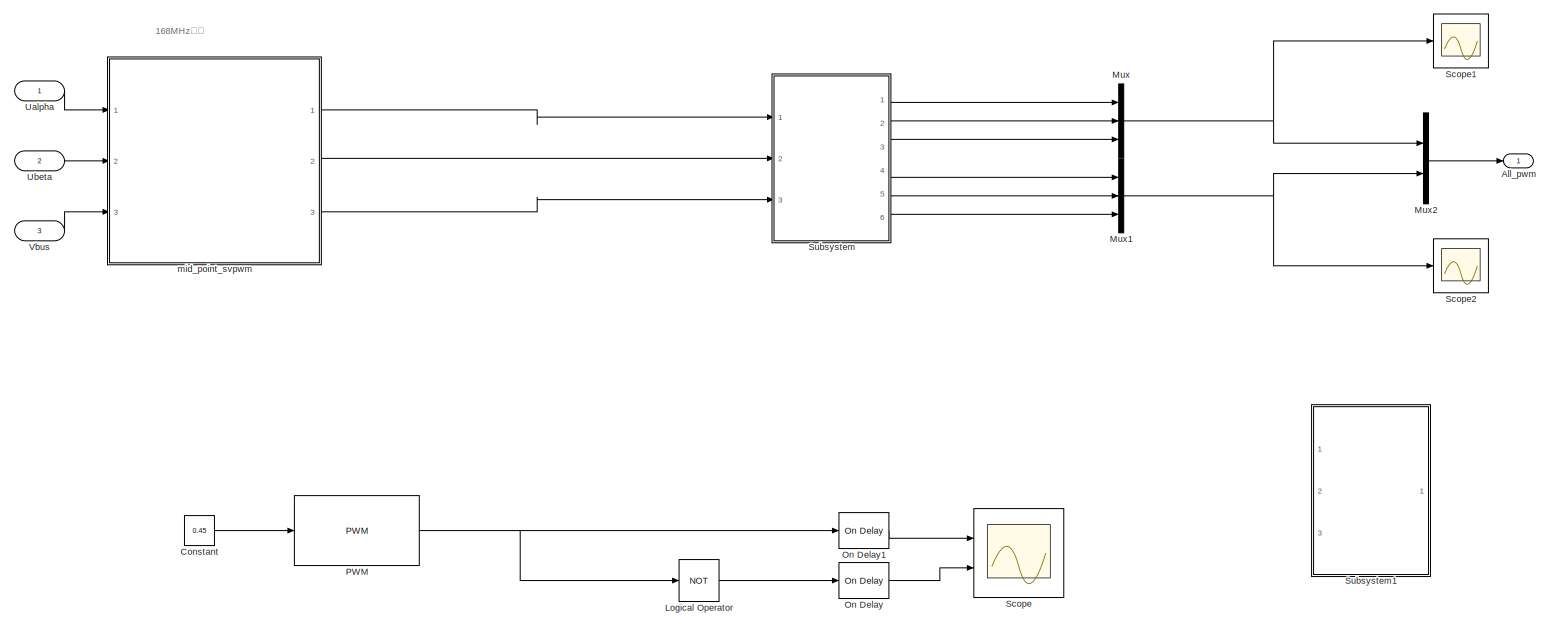
[diagram: root canvas - part 1/1, most of the canvas]
MODEL slx_13319b52a693
KIND model
CONFIG AbsTol = auto
CONFIG EnableMultiTasking = off
CONFIG FixedStep = auto
CONFIG MaxStep = auto
CONFIG MinStep = auto
CONFIG RelTol = 1e-3
CONFIG SampleTimeConstraint = Unconstrained
CONFIG SolverName = VariableStepAuto
CONFIG StartTime = 0.0
CONFIG StopTime = 0.01
BLOCK [Outport] All_pwm
BLOCK [Constant] Constant
  Commented = on
  Value = 0.45
BLOCK [Logic] Logical Operator
  AllPortsSameDT = off
  Commented = on
  Operator = NOT
  OutDataTypeStr = boolean
  Ports = [1, 1]
BLOCK [Mux] Mux
  DisplayOption = bar
  Inputs = 3
  Ports = [3, 1]
BLOCK [Mux] Mux1
  DisplayOption = bar
  Inputs = 3
  Ports = [3, 1]
BLOCK [Mux] Mux2
  DisplayOption = bar
  Inputs = 2
  Ports = [2, 1]
BLOCK [Reference] On Delay  REF=spsOnDelayLib/On Delay
  Commented = on
  Ports = [1, 1]
  SourceBlock = spsOnDelayLib/On Delay
  SourceProductBaseCode = PS
  SourceType = On/Off Delay
BLOCK [Reference] On Delay1  REF=spsOnDelayLib/On Delay
  Commented = on
  Ports = [1, 1]
  SourceBlock = spsOnDelayLib/On Delay
  SourceProductBaseCode = PS
  SourceType = On/Off Delay
BLOCK [Reference] PWM  REF=simulink/Discontinuities/PWM
  Commented = on
  DisableCoverage = on
  Ports = [1, 1]
  SourceBlock = simulink/Discontinuities/PWM
  SourceProductBaseCode = SL
  SourceType = PWM
BLOCK [Scope] Scope
  Commented = on
  Floating = off
  NumInputPorts = 2
  Ports = [2]
  ScopeSpecificationString = Simulink.scopes.TimeScopeBlockCfg('CurrentConfiguration', extmgr.ConfigurationSet(extmgr.Configuration('Core','General UI',true),extmgr.Configuration('Core','Source UI',true),extmgr.Configuration('Sources','WiredSimulink',true),extmgr.Configuration('Visuals','Time Domain',true,'SerializedDisplays',{struct('MinYLimReal','-0.1','MaxYLimReal','1.1','YLabelReal','','MinYLimMag','0.00000','MaxYLimMag',...<+1684ch>
BLOCK [Scope] Scope1
  Floating = off
  NumInputPorts = 1
  Ports = [1]
  ScopeSpecificationString = Simulink.scopes.TimeScopeBlockCfg('CurrentConfiguration', extmgr.ConfigurationSet(extmgr.Configuration('Core','General UI',true),extmgr.Configuration('Core','Source UI',true),extmgr.Configuration('Sources','WiredSimulink',true,'DataLoggingVariableName','ScopeData1'),extmgr.Configuration('Visuals','Time Domain',true,'SerializedDisplays',{struct('MinYLimReal','-0.1','MaxYLimReal','1.1','YLabelReal',...<+1863ch>
BLOCK [Scope] Scope2
  Floating = off
  NumInputPorts = 1
  Ports = [1]
  ScopeSpecificationString = Simulink.scopes.TimeScopeBlockCfg('CurrentConfiguration', extmgr.ConfigurationSet(extmgr.Configuration('Core','General UI',true),extmgr.Configuration('Core','Source UI',true),extmgr.Configuration('Sources','WiredSimulink',true,'DataLoggingVariableName','ScopeData1'),extmgr.Configuration('Visuals','Time Domain',true,'SerializedDisplays',{struct('MinYLimReal','-0.1','MaxYLimReal','1.1','YLabelReal',...<+1857ch>
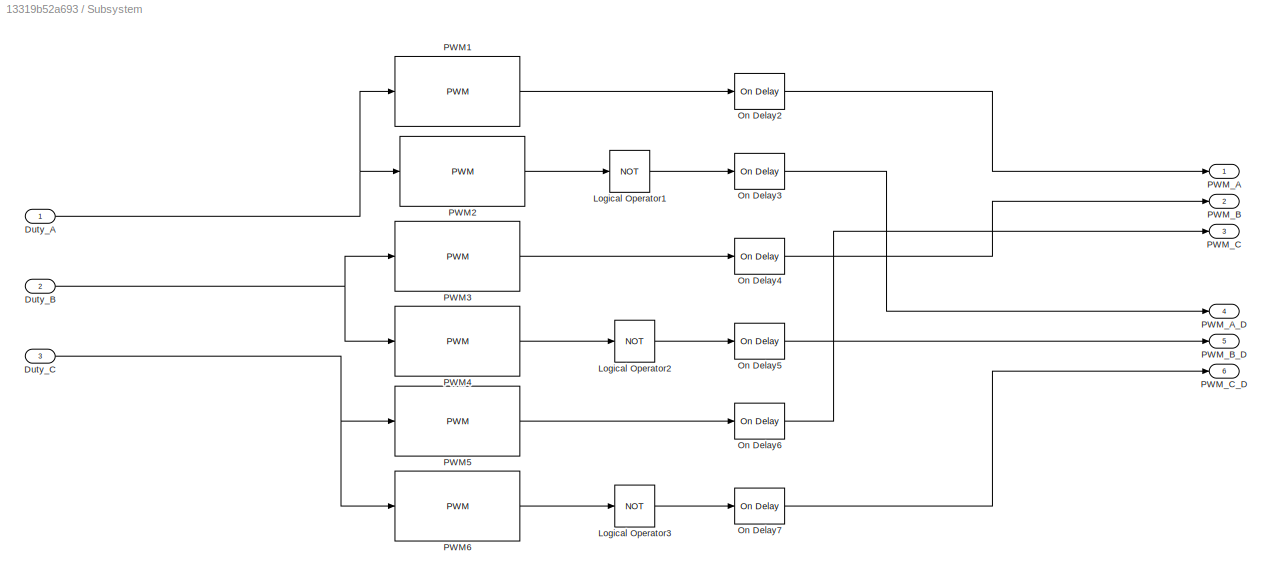
BLOCK [SubSystem] Subsystem
  Ports = [3, 6]
  RequestExecContextInheritance = off
BLOCK [Inport] Subsystem/Duty_A
BLOCK [Inport] Subsystem/Duty_B
  Port = 2
BLOCK [Inport] Subsystem/Duty_C
  Port = 3
BLOCK [Logic] Subsystem/Logical Operator1
  AllPortsSameDT = off
  Operator = NOT
  OutDataTypeStr = boolean
  Ports = [1, 1]
BLOCK [Logic] Subsystem/Logical Operator2
  AllPortsSameDT = off
  Operator = NOT
  OutDataTypeStr = boolean
  Ports = [1, 1]
BLOCK [Logic] Subsystem/Logical Operator3
  AllPortsSameDT = off
  Operator = NOT
  OutDataTypeStr = boolean
  Ports = [1, 1]
BLOCK [Reference] Subsystem/On Delay2  REF=spsOnDelayLib/On Delay
  Ports = [1, 1]
  SourceBlock = spsOnDelayLib/On Delay
  SourceProductBaseCode = PS
  SourceType = On/Off Delay
BLOCK [Reference] Subsystem/On Delay3  REF=spsOnDelayLib/On Delay
  Ports = [1, 1]
  SourceBlock = spsOnDelayLib/On Delay
  SourceProductBaseCode = PS
  SourceType = On/Off Delay
BLOCK [Reference] Subsystem/On Delay4  REF=spsOnDelayLib/On Delay
  Ports = [1, 1]
  SourceBlock = spsOnDelayLib/On Delay
  SourceProductBaseCode = PS
  SourceType = On/Off Delay
BLOCK [Reference] Subsystem/On Delay5  REF=spsOnDelayLib/On Delay
  Ports = [1, 1]
  SourceBlock = spsOnDelayLib/On Delay
  SourceProductBaseCode = PS
  SourceType = On/Off Delay
BLOCK [Reference] Subsystem/On Delay6  REF=spsOnDelayLib/On Delay
  Ports = [1, 1]
  SourceBlock = spsOnDelayLib/On Delay
  SourceProductBaseCode = PS
  SourceType = On/Off Delay
BLOCK [Reference] Subsystem/On Delay7  REF=spsOnDelayLib/On Delay
  Ports = [1, 1]
  SourceBlock = spsOnDelayLib/On Delay
  SourceProductBaseCode = PS
  SourceType = On/Off Delay
BLOCK [Reference] Subsystem/PWM1  REF=simulink/Discontinuities/PWM
  DisableCoverage = on
  Ports = [1, 1]
  SourceBlock = simulink/Discontinuities/PWM
  SourceProductBaseCode = SL
  SourceType = PWM
BLOCK [Reference] Subsystem/PWM2  REF=simulink/Discontinuities/PWM
  DisableCoverage = on
  Ports = [1, 1]
  SourceBlock = simulink/Discontinuities/PWM
  SourceProductBaseCode = SL
  SourceType = PWM
BLOCK [Reference] Subsystem/PWM3  REF=simulink/Discontinuities/PWM
  DisableCoverage = on
  Ports = [1, 1]
  SourceBlock = simulink/Discontinuities/PWM
  SourceProductBaseCode = SL
  SourceType = PWM
BLOCK [Reference] Subsystem/PWM4  REF=simulink/Discontinuities/PWM
  DisableCoverage = on
  Ports = [1, 1]
  SourceBlock = simulink/Discontinuities/PWM
  SourceProductBaseCode = SL
  SourceType = PWM
BLOCK [Reference] Subsystem/PWM5  REF=simulink/Discontinuities/PWM
  DisableCoverage = on
  Ports = [1, 1]
  SourceBlock = simulink/Discontinuities/PWM
  SourceProductBaseCode = SL
  SourceType = PWM
BLOCK [Reference] Subsystem/PWM6  REF=simulink/Discontinuities/PWM
  DisableCoverage = on
  Ports = [1, 1]
  SourceBlock = simulink/Discontinuities/PWM
  SourceProductBaseCode = SL
  SourceType = PWM
BLOCK [Outport] Subsystem/PWM_A
BLOCK [Outport] Subsystem/PWM_A_D
  Port = 4
BLOCK [Outport] Subsystem/PWM_B
  Port = 2
BLOCK [Outport] Subsystem/PWM_B_D
  Port = 5
BLOCK [Outport] Subsystem/PWM_C
  Port = 3
BLOCK [Outport] Subsystem/PWM_C_D
  Port = 6
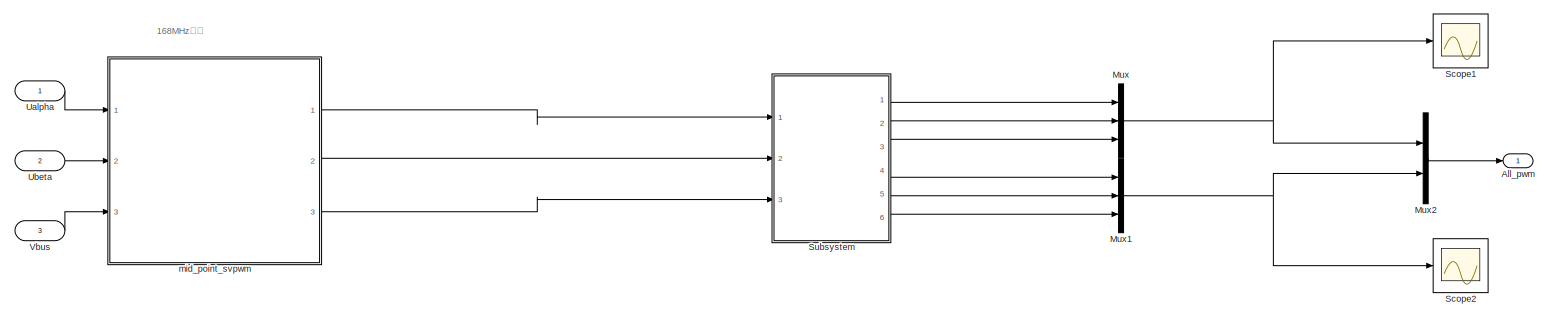
[diagram: Subsystem1 - part 1/1, most of the canvas]
BLOCK [SubSystem] Subsystem1
  Commented = on
  Ports = [3, 1]
  RequestExecContextInheritance = off
BLOCK [Outport] Subsystem1/All_pwm
BLOCK [Mux] Subsystem1/Mux
  DisplayOption = bar
  Inputs = 3
  Ports = [3, 1]
BLOCK [Mux] Subsystem1/Mux1
  DisplayOption = bar
  Inputs = 3
  Ports = [3, 1]
BLOCK [Mux] Subsystem1/Mux2
  DisplayOption = bar
  Inputs = 2
  Ports = [2, 1]
BLOCK [Scope] Subsystem1/Scope1
  Floating = off
  NumInputPorts = 1
  Ports = [1]
  ScopeSpecificationString = Simulink.scopes.TimeScopeBlockCfg('CurrentConfiguration', extmgr.ConfigurationSet(extmgr.Configuration('Core','General UI',true),extmgr.Configuration('Core','Source UI',true),extmgr.Configuration('Sources','WiredSimulink',true,'DataLoggingVariableName','ScopeData2'),extmgr.Configuration('Visuals','Time Domain',true,'SerializedDisplays',{struct('MinYLimReal','-0.1','MaxYLimReal','1.1','YLabelReal',...<+1863ch>
BLOCK [Scope] Subsystem1/Scope2
  Floating = off
  NumInputPorts = 1
  Ports = [1]
  ScopeSpecificationString = Simulink.scopes.TimeScopeBlockCfg('CurrentConfiguration', extmgr.ConfigurationSet(extmgr.Configuration('Core','General UI',true),extmgr.Configuration('Core','Source UI',true),extmgr.Configuration('Sources','WiredSimulink',true,'DataLoggingVariableName','ScopeData3'),extmgr.Configuration('Visuals','Time Domain',true,'SerializedDisplays',{struct('MinYLimReal','-0.1','MaxYLimReal','1.1','YLabelReal',...<+1857ch>
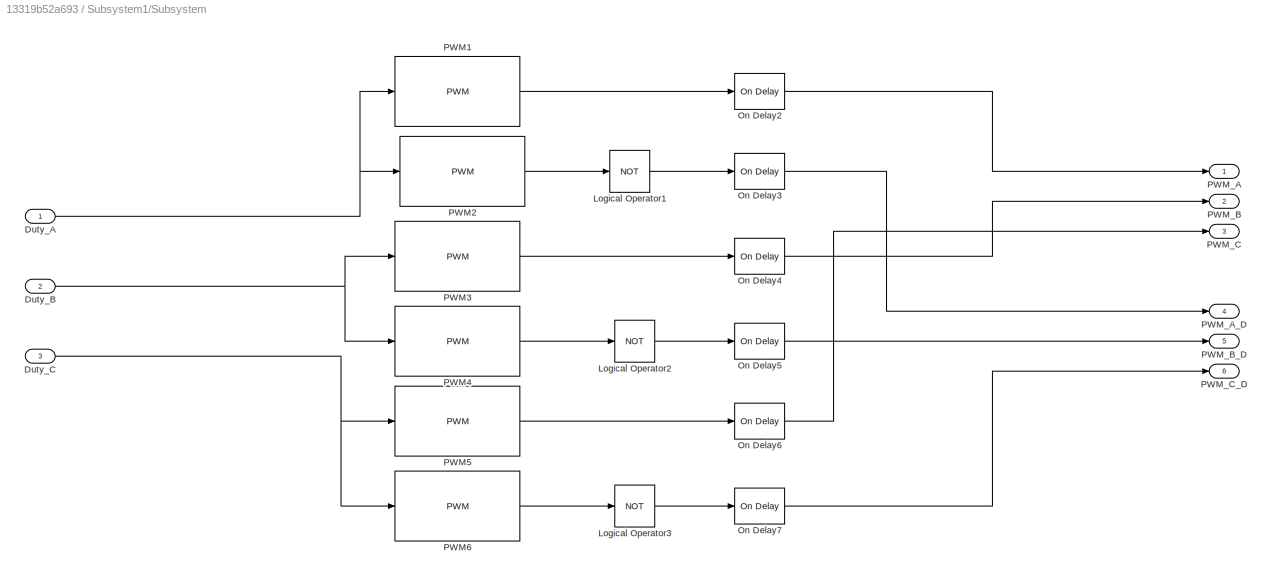
BLOCK [SubSystem] Subsystem1/Subsystem
  Ports = [3, 6]
  RequestExecContextInheritance = off
BLOCK [Inport] Subsystem1/Subsystem/Duty_A
BLOCK [Inport] Subsystem1/Subsystem/Duty_B
  Port = 2
BLOCK [Inport] Subsystem1/Subsystem/Duty_C
  Port = 3
BLOCK [Logic] Subsystem1/Subsystem/Logical Operator1
  AllPortsSameDT = off
  Operator = NOT
  OutDataTypeStr = boolean
  Ports = [1, 1]
BLOCK [Logic] Subsystem1/Subsystem/Logical Operator2
  AllPortsSameDT = off
  Operator = NOT
  OutDataTypeStr = boolean
  Ports = [1, 1]
BLOCK [Logic] Subsystem1/Subsystem/Logical Operator3
  AllPortsSameDT = off
  Operator = NOT
  OutDataTypeStr = boolean
  Ports = [1, 1]
BLOCK [Reference] Subsystem1/Subsystem/On Delay2  REF=spsOnDelayLib/On Delay
  Ports = [1, 1]
  SourceBlock = spsOnDelayLib/On Delay
  SourceProductBaseCode = PS
  SourceType = On/Off Delay
BLOCK [Reference] Subsystem1/Subsystem/On Delay3  REF=spsOnDelayLib/On Delay
  Ports = [1, 1]
  SourceBlock = spsOnDelayLib/On Delay
  SourceProductBaseCode = PS
  SourceType = On/Off Delay
BLOCK [Reference] Subsystem1/Subsystem/On Delay4  REF=spsOnDelayLib/On Delay
  Ports = [1, 1]
  SourceBlock = spsOnDelayLib/On Delay
  SourceProductBaseCode = PS
  SourceType = On/Off Delay
BLOCK [Reference] Subsystem1/Subsystem/On Delay5  REF=spsOnDelayLib/On Delay
  Ports = [1, 1]
  SourceBlock = spsOnDelayLib/On Delay
  SourceProductBaseCode = PS
  SourceType = On/Off Delay
BLOCK [Reference] Subsystem1/Subsystem/On Delay6  REF=spsOnDelayLib/On Delay
  Ports = [1, 1]
  SourceBlock = spsOnDelayLib/On Delay
  SourceProductBaseCode = PS
  SourceType = On/Off Delay
BLOCK [Reference] Subsystem1/Subsystem/On Delay7  REF=spsOnDelayLib/On Delay
  Ports = [1, 1]
  SourceBlock = spsOnDelayLib/On Delay
  SourceProductBaseCode = PS
  SourceType = On/Off Delay
BLOCK [Reference] Subsystem1/Subsystem/PWM1  REF=simulink/Discontinuities/PWM
  DisableCoverage = on
  Ports = [1, 1]
  SourceBlock = simulink/Discontinuities/PWM
  SourceProductBaseCode = SL
  SourceType = PWM
BLOCK [Reference] Subsystem1/Subsystem/PWM2  REF=simulink/Discontinuities/PWM
  DisableCoverage = on
  Ports = [1, 1]
  SourceBlock = simulink/Discontinuities/PWM
  SourceProductBaseCode = SL
  SourceType = PWM
BLOCK [Reference] Subsystem1/Subsystem/PWM3  REF=simulink/Discontinuities/PWM
  DisableCoverage = on
  Ports = [1, 1]
  SourceBlock = simulink/Discontinuities/PWM
  SourceProductBaseCode = SL
  SourceType = PWM
BLOCK [Reference] Subsystem1/Subsystem/PWM4  REF=simulink/Discontinuities/PWM
  DisableCoverage = on
  Ports = [1, 1]
  SourceBlock = simulink/Discontinuities/PWM
  SourceProductBaseCode = SL
  SourceType = PWM
BLOCK [Reference] Subsystem1/Subsystem/PWM5  REF=simulink/Discontinuities/PWM
  DisableCoverage = on
  Ports = [1, 1]
  SourceBlock = simulink/Discontinuities/PWM
  SourceProductBaseCode = SL
  SourceType = PWM
BLOCK [Reference] Subsystem1/Subsystem/PWM6  REF=simulink/Discontinuities/PWM
  DisableCoverage = on
  Ports = [1, 1]
  SourceBlock = simulink/Discontinuities/PWM
  SourceProductBaseCode = SL
  SourceType = PWM
BLOCK [Outport] Subsystem1/Subsystem/PWM_A
BLOCK [Outport] Subsystem1/Subsystem/PWM_A_D
  Port = 4
BLOCK [Outport] Subsystem1/Subsystem/PWM_B
  Port = 2
BLOCK [Outport] Subsystem1/Subsystem/PWM_B_D
  Port = 5
BLOCK [Outport] Subsystem1/Subsystem/PWM_C
  Port = 3
BLOCK [Outport] Subsystem1/Subsystem/PWM_C_D
  Port = 6
BLOCK [Inport] Subsystem1/Ualpha
BLOCK [Inport] Subsystem1/Ubeta
  Port = 2
BLOCK [Inport] Subsystem1/Vbus
  Port = 3
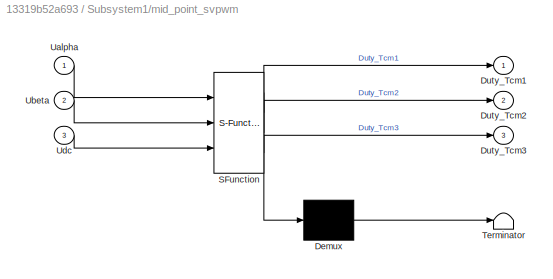
BLOCK [SubSystem] Subsystem1/mid_point_svpwm
  ErrorFcn = Stateflow.Translate.translate
  PermitHierarchicalResolution = ExplicitOnly
  Ports = [3, 3]
  RequestExecContextInheritance = off
  SFBlockType = MATLAB Function
  TreatAsAtomicUnit = on
BLOCK [Demux] Subsystem1/mid_point_svpwm/ Demux 
  Outputs = 1
  Ports = [1, 1]
BLOCK [S-Function] Subsystem1/mid_point_svpwm/ SFunction 
  EnableBusSupport = on
  FunctionName = sf_sfun
  PortCounts = [3 4]
  Ports = [3, 4]
  SFcnIsStateOwnerBlock = off
  SFunctionDeploymentMode = off
  Tag = Stateflow S-Function 2
BLOCK [Terminator] Subsystem1/mid_point_svpwm/ Terminator 
BLOCK [Outport] Subsystem1/mid_point_svpwm/Duty_Tcm1
BLOCK [Outport] Subsystem1/mid_point_svpwm/Duty_Tcm2
  Port = 2
BLOCK [Outport] Subsystem1/mid_point_svpwm/Duty_Tcm3
  Port = 3
BLOCK [Inport] Subsystem1/mid_point_svpwm/Ualpha
BLOCK [Inport] Subsystem1/mid_point_svpwm/Ubeta
  Port = 2
BLOCK [Inport] Subsystem1/mid_point_svpwm/Udc
  Port = 3
BLOCK [Inport] Ualpha
BLOCK [Inport] Ubeta
  Port = 2
BLOCK [Inport] Vbus
  Port = 3
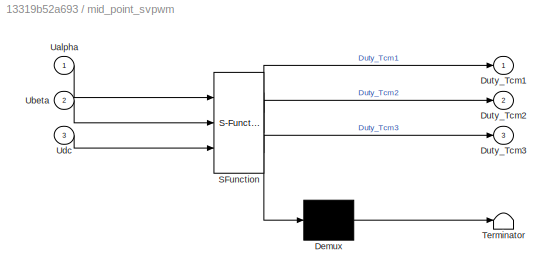
BLOCK [SubSystem] mid_point_svpwm
  ErrorFcn = Stateflow.Translate.translate
  PermitHierarchicalResolution = ExplicitOnly
  Ports = [3, 3]
  RequestExecContextInheritance = off
  SFBlockType = MATLAB Function
  TreatAsAtomicUnit = on
BLOCK [Demux] mid_point_svpwm/ Demux 
  Outputs = 1
  Ports = [1, 1]
BLOCK [S-Function] mid_point_svpwm/ SFunction 
  EnableBusSupport = on
  FunctionName = sf_sfun
  PortCounts = [3 4]
  Ports = [3, 4]
  SFcnIsStateOwnerBlock = off
  SFunctionDeploymentMode = off
  Tag = Stateflow S-Function 1
BLOCK [Terminator] mid_point_svpwm/ Terminator 
BLOCK [Outport] mid_point_svpwm/Duty_Tcm1
BLOCK [Outport] mid_point_svpwm/Duty_Tcm2
  Port = 2
BLOCK [Outport] mid_point_svpwm/Duty_Tcm3
  Port = 3
BLOCK [Inport] mid_point_svpwm/Ualpha
BLOCK [Inport] mid_point_svpwm/Ubeta
  Port = 2
BLOCK [Inport] mid_point_svpwm/Udc
  Port = 3
ANNOTATION (root): 168MHz主频
ANNOTATION Subsystem1: 168MHz主频
LINE Constant:1 -> PWM:1
LINE Logical Operator:1 -> On Delay:1
NET Mux1:1 -> Mux2:2, Scope2:1
LINE Mux2:1 -> All_pwm:1
NET Mux:1 -> Mux2:1, Scope1:1
LINE On Delay1:1 -> Scope:1
LINE On Delay:1 -> Scope:2
NET PWM:1 -> Logical Operator:1, On Delay1:1
NET Subsystem/Duty_A:1 -> Subsystem/PWM1:1, Subsystem/PWM2:1
NET Subsystem/Duty_B:1 -> Subsystem/PWM3:1, Subsystem/PWM4:1
NET Subsystem/Duty_C:1 -> Subsystem/PWM5:1, Subsystem/PWM6:1
LINE Subsystem/Logical Operator1:1 -> Subsystem/On Delay3:1
LINE Subsystem/Logical Operator2:1 -> Subsystem/On Delay5:1
LINE Subsystem/Logical Operator3:1 -> Subsystem/On Delay7:1
LINE Subsystem/On Delay2:1 -> Subsystem/PWM_A:1
LINE Subsystem/On Delay3:1 -> Subsystem/PWM_A_D:1
LINE Subsystem/On Delay4:1 -> Subsystem/PWM_B:1
LINE Subsystem/On Delay5:1 -> Subsystem/PWM_B_D:1
LINE Subsystem/On Delay6:1 -> Subsystem/PWM_C:1
LINE Subsystem/On Delay7:1 -> Subsystem/PWM_C_D:1
LINE Subsystem/PWM1:1 -> Subsystem/On Delay2:1
LINE Subsystem/PWM2:1 -> Subsystem/Logical Operator1:1
LINE Subsystem/PWM3:1 -> Subsystem/On Delay4:1
LINE Subsystem/PWM4:1 -> Subsystem/Logical Operator2:1
LINE Subsystem/PWM5:1 -> Subsystem/On Delay6:1
LINE Subsystem/PWM6:1 -> Subsystem/Logical Operator3:1
NET Subsystem1/Mux1:1 -> Subsystem1/Mux2:2, Subsystem1/Scope2:1
LINE Subsystem1/Mux2:1 -> Subsystem1/All_pwm:1
NET Subsystem1/Mux:1 -> Subsystem1/Mux2:1, Subsystem1/Scope1:1
NET Subsystem1/Subsystem/Duty_A:1 -> Subsystem1/Subsystem/PWM1:1, Subsystem1/Subsystem/PWM2:1
NET Subsystem1/Subsystem/Duty_B:1 -> Subsystem1/Subsystem/PWM3:1, Subsystem1/Subsystem/PWM4:1
NET Subsystem1/Subsystem/Duty_C:1 -> Subsystem1/Subsystem/PWM5:1, Subsystem1/Subsystem/PWM6:1
LINE Subsystem1/Subsystem/Logical Operator1:1 -> Subsystem1/Subsystem/On Delay3:1
LINE Subsystem1/Subsystem/Logical Operator2:1 -> Subsystem1/Subsystem/On Delay5:1
LINE Subsystem1/Subsystem/Logical Operator3:1 -> Subsystem1/Subsystem/On Delay7:1
LINE Subsystem1/Subsystem/On Delay2:1 -> Subsystem1/Subsystem/PWM_A:1
LINE Subsystem1/Subsystem/On Delay3:1 -> Subsystem1/Subsystem/PWM_A_D:1
LINE Subsystem1/Subsystem/On Delay4:1 -> Subsystem1/Subsystem/PWM_B:1
LINE Subsystem1/Subsystem/On Delay5:1 -> Subsystem1/Subsystem/PWM_B_D:1
LINE Subsystem1/Subsystem/On Delay6:1 -> Subsystem1/Subsystem/PWM_C:1
LINE Subsystem1/Subsystem/On Delay7:1 -> Subsystem1/Subsystem/PWM_C_D:1
LINE Subsystem1/Subsystem/PWM1:1 -> Subsystem1/Subsystem/On Delay2:1
LINE Subsystem1/Subsystem/PWM2:1 -> Subsystem1/Subsystem/Logical Operator1:1
LINE Subsystem1/Subsystem/PWM3:1 -> Subsystem1/Subsystem/On Delay4:1
LINE Subsystem1/Subsystem/PWM4:1 -> Subsystem1/Subsystem/Logical Operator2:1
LINE Subsystem1/Subsystem/PWM5:1 -> Subsystem1/Subsystem/On Delay6:1
LINE Subsystem1/Subsystem/PWM6:1 -> Subsystem1/Subsystem/Logical Operator3:1
LINE Subsystem1/Subsystem:1 -> Subsystem1/Mux:1
LINE Subsystem1/Subsystem:2 -> Subsystem1/Mux:2
LINE Subsystem1/Subsystem:3 -> Subsystem1/Mux:3
LINE Subsystem1/Subsystem:4 -> Subsystem1/Mux1:1
LINE Subsystem1/Subsystem:5 -> Subsystem1/Mux1:2
LINE Subsystem1/Subsystem:6 -> Subsystem1/Mux1:3
LINE Subsystem1/Ualpha:1 -> Subsystem1/mid_point_svpwm:1
LINE Subsystem1/Ubeta:1 -> Subsystem1/mid_point_svpwm:2
LINE Subsystem1/Vbus:1 -> Subsystem1/mid_point_svpwm:3
LINE Subsystem1/mid_point_svpwm:1 -> Subsystem1/Subsystem:1
LINE Subsystem1/mid_point_svpwm:2 -> Subsystem1/Subsystem:2
LINE Subsystem1/mid_point_svpwm:3 -> Subsystem1/Subsystem:3
LINE Subsystem:1 -> Mux:1
LINE Subsystem:2 -> Mux:2
LINE Subsystem:3 -> Mux:3
LINE Subsystem:4 -> Mux1:1
LINE Subsystem:5 -> Mux1:2
LINE Subsystem:6 -> Mux1:3
LINE Ualpha:1 -> mid_point_svpwm:1
LINE Ubeta:1 -> mid_point_svpwm:2
LINE Vbus:1 -> mid_point_svpwm:3
LINE mid_point_svpwm:1 -> Subsystem:1
LINE mid_point_svpwm:2 -> Subsystem:2
LINE mid_point_svpwm:3 -> Subsystem:3
note: NET lines group one-source signal fan-out (src -> all destinations, sorted); 1:1 wires keep LINE
CHART mid_point_svpwm states=1 transitions=1
  STATE_LABEL 'eML_blk_kernel()'
  STATE_LABEL 'SCRIPT:\nfunction [Duty_Tcm1,Duty_Tcm2,Duty_Tcm3] = fcn(Ualpha,Ubeta,Udc)\nTcm1 = 0;\nTcm2 = 0;\nTcm3 = 0;\n\nDuty_Tcm1 = 0;\nDuty_Tcm2 = 0;\nDuty_Tcm3 = 0;\n\n\nVmax_pu=0;\nVmin_pu=0;\nVcom_pu=0;\n\nValpha_pu = Ualpha/Udc;\nVbeta_pu = Ubeta/Udc;\n\t\nVa_tmp = 0.5 * Valpha_pu;\nVb_tmp = 0.8660254038 * Vbeta_pu;\n\nVa_pu = Valpha_pu;\nVb_pu = -Va_tmp + Vb_tmp;\t\t\t\t\t\t\nVc_pu = -Va_tmp - Vb_tmp;\t\t\t\t\t\t\n\nif(Va_pu > Vb_pu)\n    ...<+620ch>'
CHART Subsystem1/mid_point_svpwm states=1 transitions=1
  STATE_LABEL 'eML_blk_kernel()'
  STATE_LABEL 'SCRIPT:\nfunction [Duty_Tcm1,Duty_Tcm2,Duty_Tcm3] = fcn(Ualpha,Ubeta,Udc)\nTcm1 = 0;\nTcm2 = 0;\nTcm3 = 0;\n\nDuty_Tcm1 = 0;\nDuty_Tcm2 = 0;\nDuty_Tcm3 = 0;\n\n\nVmax_pu=0;\nVmin_pu=0;\nVcom_pu=0;\n\nValpha_pu = Ualpha/Udc;\nVbeta_pu = Ubeta/Udc;\n\t\nVa_tmp = 0.5 * Valpha_pu;\nVb_tmp = 0.8660254038 * Vbeta_pu;\n\nVa_pu = Valpha_pu;\nVb_pu = -Va_tmp + Vb_tmp;\t\t\t\t\t\t\nVc_pu = -Va_tmp - Vb_tmp;\t\t\t\t\t\t\n\nif(Va_pu > Vb_pu)\n    ...<+620ch>'
CHART  states=0 transitions=0
CHART  states=0 transitions=0
